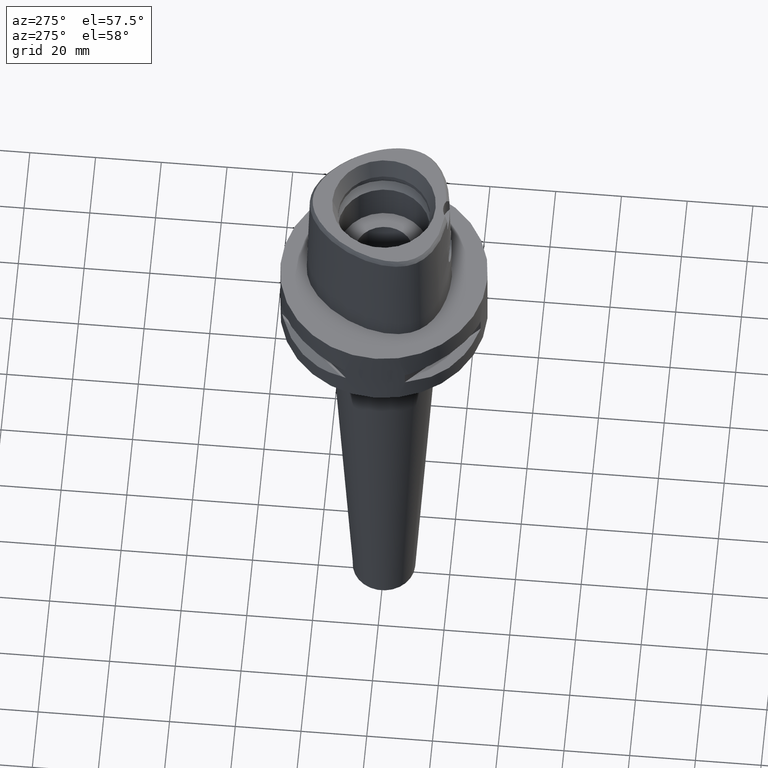
[diagram: clean part render]
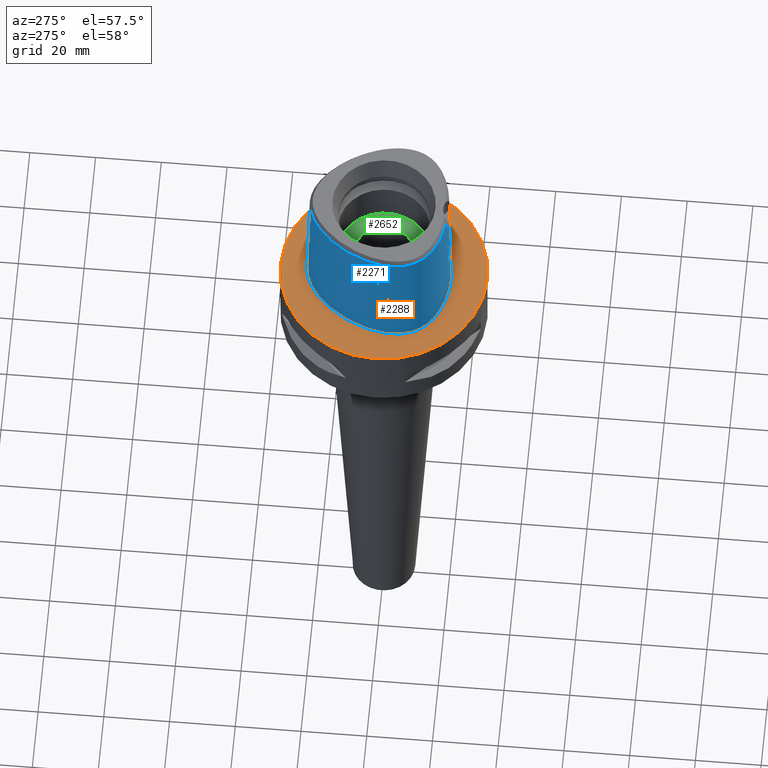
[diagram: same view with three faces highlighted in distinct colors, each labeled with its STEP entity id]
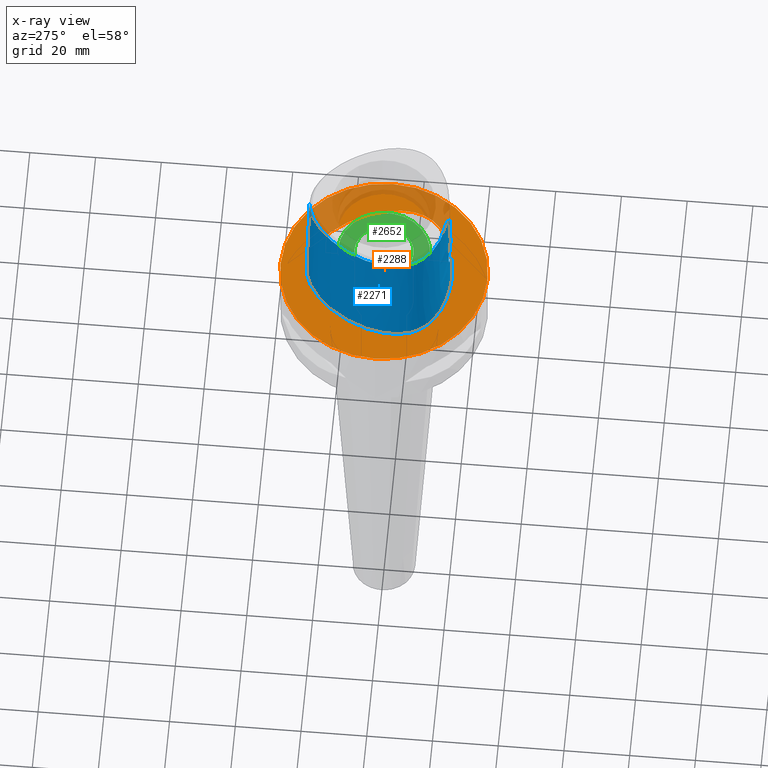
[diagram: x-ray of the same camera — body ghosted, the three highlighted faces saturated]
A machine part, auxiliary view with three faces highlighted in distinct colors.
The next image is the same camera in x-ray (body ghosted, the three faces saturated) — at least one of them is partly hidden behind the body in this view.
Their STEP definitions:

[orange] entity #2288 — the highlighted planar face has unit normal (0, 0, -1).
#275=CARTESIAN_POINT('',(0.E0,1.325680160077E-14,0.E0));
#276=DIRECTION('',(0.E0,0.E0,-1.E0));
#277=DIRECTION('',(0.E0,-1.E0,0.E0));
#278=AXIS2_PLACEMENT_3D('',#275,#276,#277);
#283=CARTESIAN_POINT('',(0.E0,1.325680160077E-14,0.E0));
#284=DIRECTION('',(0.E0,0.E0,-1.E0));
#285=DIRECTION('',(0.E0,1.E0,0.E0));
#286=AXIS2_PLACEMENT_3D('',#283,#284,#285);
#291=CARTESIAN_POINT('',(-5.544119263659E-12,-2.0675E1,7.264559324464E-14));
#292=CARTESIAN_POINT('',(9.993560509798E-1,-2.0675E1,7.264559324464E-14));
#293=CARTESIAN_POINT('',(2.955454059953E0,-2.059182991098E1,
-3.371493715748E-14));
#294=CARTESIAN_POINT('',(5.793056832365E0,-2.023445547095E1,0.E0));
#295=CARTESIAN_POINT('',(8.440299845029E0,-1.966898990197E1,0.E0));
#296=CARTESIAN_POINT('',(1.082569887884E1,-1.893751788510E1,0.E0));
#297=CARTESIAN_POINT('',(1.292144293780E1,-1.808304144246E1,0.E0));
#298=CARTESIAN_POINT('',(1.473190987268E1,-1.714161088191E1,0.E0));
#299=CARTESIAN_POINT('',(1.628058086811E1,-1.613700341594E1,0.E0));
#300=CARTESIAN_POINT('',(1.758462319708E1,-1.509429163050E1,0.E0));
#301=CARTESIAN_POINT('',(1.868311493360E1,-1.401452497844E1,0.E0));
#302=CARTESIAN_POINT('',(1.959652438140E1,-1.290475345799E1,0.E0));
#303=CARTESIAN_POINT('',(2.036064678625E1,-1.173722907498E1,0.E0));
#304=CARTESIAN_POINT('',(2.098286737742E1,-1.049796407517E1,0.E0));
#305=CARTESIAN_POINT('',(2.148460262653E1,-9.152658909070E0,0.E0));
#306=CARTESIAN_POINT('',(2.186688955230E1,-7.668741930685E0,0.E0));
#307=CARTESIAN_POINT('',(2.211748022392E1,-6.011344606950E0,0.E0));
#308=CARTESIAN_POINT('',(2.221114513228E1,-4.165101131633E0,0.E0));
#309=CARTESIAN_POINT('',(2.211859909826E1,-2.119791264277E0,0.E0));
#310=CARTESIAN_POINT('',(2.180697303124E1,1.274638893074E-1,0.E0));
#311=CARTESIAN_POINT('',(2.124390727169E1,2.561688994165E0,0.E0));
#312=CARTESIAN_POINT('',(2.040432990039E1,5.142967568815E0,0.E0));
#313=CARTESIAN_POINT('',(1.928615762684E1,7.790527726071E0,0.E0));
#314=CARTESIAN_POINT('',(1.790818983488E1,1.041471447125E1,0.E0));
#315=CARTESIAN_POINT('',(1.631740085403E1,1.291115934797E1,0.E0));
#316=CARTESIAN_POINT('',(1.457981575214E1,1.519116277501E1,0.E0));
#317=CARTESIAN_POINT('',(1.276360468057E1,1.719471030503E1,0.E0));
#318=CARTESIAN_POINT('',(1.094031032691E1,1.888405274651E1,0.E0));
#319=CARTESIAN_POINT('',(9.153147211204E0,2.026455207171E1,0.E0));
#320=CARTESIAN_POINT('',(7.435015692265E0,2.135402119261E1,0.E0));
#321=CARTESIAN_POINT('',(5.795953209951E0,2.218530691809E1,0.E0));
#322=CARTESIAN_POINT('',(4.238113018428E0,2.278980944085E1,0.E0));
#323=CARTESIAN_POINT('',(2.755912777145E0,2.319591735050E1,0.E0));
#324=CARTESIAN_POINT('',(1.346169757095E0,2.342625517229E1,
-3.235809557040E-14));
#325=CARTESIAN_POINT('',(4.420725725818E-1,2.347499999999E1,
6.972200594646E-14));
#326=CARTESIAN_POINT('',(3.799139197506E-11,2.347499999999E1,
6.972200594646E-14));
#331=CARTESIAN_POINT('',(3.799139197506E-11,2.347499999999E1,
6.972200594646E-14));
#332=CARTESIAN_POINT('',(-4.425820475878E-1,2.347499999999E1,
6.972200594646E-14));
#333=CARTESIAN_POINT('',(-1.347662200040E0,2.342614583775E1,
-3.235809557040E-14));
#334=CARTESIAN_POINT('',(-2.758853381342E0,2.319531897184E1,0.E0));
#335=CARTESIAN_POINT('',(-4.242230104549E0,2.278848861890E1,0.E0));
#336=CARTESIAN_POINT('',(-5.801612667635E0,2.218285001682E1,0.E0));
#337=CARTESIAN_POINT('',(-7.442978404358E0,2.134957065587E1,0.E0));
#338=CARTESIAN_POINT('',(-9.163227561140E0,2.025756793929E1,0.E0));
#339=CARTESIAN_POINT('',(-1.095272870368E1,1.887364628884E1,0.E0));
#340=CARTESIAN_POINT('',(-1.277801152707E1,1.718022281640E1,0.E0));
#341=CARTESIAN_POINT('',(-1.459495771783E1,1.517303412729E1,0.E0));
#342=CARTESIAN_POINT('',(-1.633282642389E1,1.288911490603E1,0.E0));
#343=CARTESIAN_POINT('',(-1.792246770589E1,1.039015374661E1,0.E0));
#344=CARTESIAN_POINT('',(-1.929884579616E1,7.763682889804E0,0.E0));
#345=CARTESIAN_POINT('',(-2.041405626851E1,5.116842502056E0,0.E0));
#346=CARTESIAN_POINT('',(-2.125087139496E1,2.536440296266E0,0.E0));
#347=CARTESIAN_POINT('',(-2.181091904993E1,1.058134259895E-1,0.E0));
#348=CARTESIAN_POINT('',(-2.212049288494E1,-2.140142262062E0,0.E0));
#349=CARTESIAN_POINT('',(-2.221099399982E1,-4.183391986546E0,0.E0));
#350=CARTESIAN_POINT('',(-2.211611235615E1,-6.025168758480E0,0.E0));
#351=CARTESIAN_POINT('',(-2.186347175870E1,-7.686763478002E0,0.E0));
#352=CARTESIAN_POINT('',(-2.147797938097E1,-9.173911519513E0,0.E0));
#353=CARTESIAN_POINT('',(-2.097460780692E1,-1.051678122246E1,0.E0));
#354=CARTESIAN_POINT('',(-2.035325712307E1,-1.174865156376E1,0.E0));
#355=CARTESIAN_POINT('',(-1.960223723573E1,-1.289594780434E1,0.E0));
#356=CARTESIAN_POINT('',(-1.869579824321E1,-1.400010665431E1,0.E0));
#357=CARTESIAN_POINT('',(-1.760876310015E1,-1.507291202278E1,0.E0));
#358=CARTESIAN_POINT('',(-1.629860914140E1,-1.612432705675E1,0.E0));
#359=CARTESIAN_POINT('',(-1.475326852250E1,-1.712914698935E1,0.E0));
#360=CARTESIAN_POINT('',(-1.294126791582E1,-1.807406224244E1,0.E0));
#361=CARTESIAN_POINT('',(-1.084450933749E1,-1.893089849681E1,0.E0));
#362=CARTESIAN_POINT('',(-8.457239462537E0,-1.966475618658E1,0.E0));
#363=CARTESIAN_POINT('',(-5.803786146490E0,-2.023290404964E1,0.E0));
#364=CARTESIAN_POINT('',(-2.957577428885E0,-2.059182769325E1,
-3.371493715748E-14));
#365=CARTESIAN_POINT('',(-9.997112379900E-1,-2.0675E1,7.264559324464E-14));
#366=CARTESIAN_POINT('',(-5.544119263659E-12,-2.0675E1,7.264559324464E-14));
#1452=VERTEX_POINT('',#331);
#1453=VERTEX_POINT('',#366);
#1458=CARTESIAN_POINT('',(0.E0,-3.15E1,0.E0));
#1459=CARTESIAN_POINT('',(0.E0,3.15E1,0.E0));
#1460=VERTEX_POINT('',#1458);
#1461=VERTEX_POINT('',#1459);
#2272=CARTESIAN_POINT('',(0.E0,1.224646799147E-14,0.E0));
#2273=DIRECTION('',(0.E0,0.E0,-1.E0));
#2274=DIRECTION('',(0.E0,-1.E0,0.E0));
#2275=AXIS2_PLACEMENT_3D('',#2272,#2273,#2274);
#2276=PLANE('',#2275);
#2278=ORIENTED_EDGE('',*,*,#2277,.T.);
#2280=ORIENTED_EDGE('',*,*,#2279,.T.);
#2281=EDGE_LOOP('',(#2278,#2280));
#2282=FACE_OUTER_BOUND('',#2281,.F.);
#2284=ORIENTED_EDGE('',*,*,#2283,.T.);
#2285=ORIENTED_EDGE('',*,*,#2255,.T.);
#2286=EDGE_LOOP('',(#2284,#2285));
#2287=FACE_BOUND('',#2286,.F.);
#279=CIRCLE('',#278,3.15E1);
#287=CIRCLE('',#286,3.15E1);
#327=B_SPLINE_CURVE_WITH_KNOTS('',3,(#291,#292,#293,#294,#295,#296,#297,#298,
#299,#300,#301,#302,#303,#304,#305,#306,#307,#308,#309,#310,#311,#312,#313,#314,
#315,#316,#317,#318,#319,#320,#321,#322,#323,#324,#325,#326),.UNSPECIFIED.,.F.,
.F.,(4,1,1,1,1,1,1,1,1,1,1,1,1,1,1,1,1,1,1,1,1,1,1,1,1,1,1,1,1,1,1,1,1,4),(0.E0,
3.030303030303E-2,6.060606060606E-2,9.090909090909E-2,1.212121212121E-1,
1.515151515152E-1,1.818181818182E-1,2.121212121212E-1,2.424242424242E-1,
2.727272727273E-1,3.030303030303E-1,3.333333333333E-1,3.636363636364E-1,
3.939393939394E-1,4.242424242424E-1,4.545454545455E-1,4.848484848485E-1,
5.151515151515E-1,5.454545454545E-1,5.757575757576E-1,6.060606060606E-1,
6.363636363636E-1,6.666666666667E-1,6.969696969697E-1,7.272727272727E-1,
7.575757575758E-1,7.878787878788E-1,8.181818181818E-1,8.484848484848E-1,
8.787878787879E-1,9.090909090909E-1,9.393939393939E-1,9.696969696970E-1,1.E0),
.UNSPECIFIED.);
#367=B_SPLINE_CURVE_WITH_KNOTS('',3,(#331,#332,#333,#334,#335,#336,#337,#338,
#339,#340,#341,#342,#343,#344,#345,#346,#347,#348,#349,#350,#351,#352,#353,#354,
#355,#356,#357,#358,#359,#360,#361,#362,#363,#364,#365,#366),.UNSPECIFIED.,.F.,
.F.,(4,1,1,1,1,1,1,1,1,1,1,1,1,1,1,1,1,1,1,1,1,1,1,1,1,1,1,1,1,1,1,1,1,4),(0.E0,
3.030303030303E-2,6.060606060606E-2,9.090909090909E-2,1.212121212121E-1,
1.515151515152E-1,1.818181818182E-1,2.121212121212E-1,2.424242424242E-1,
2.727272727273E-1,3.030303030303E-1,3.333333333333E-1,3.636363636364E-1,
3.939393939394E-1,4.242424242424E-1,4.545454545455E-1,4.848484848485E-1,
5.151515151515E-1,5.454545454545E-1,5.757575757576E-1,6.060606060606E-1,
6.363636363636E-1,6.666666666667E-1,6.969696969697E-1,7.272727272727E-1,
7.575757575758E-1,7.878787878788E-1,8.181818181818E-1,8.484848484848E-1,
8.787878787879E-1,9.090909090909E-1,9.393939393939E-1,9.696969696970E-1,1.E0),
.UNSPECIFIED.);
#2255=EDGE_CURVE('',#1452,#1453,#367,.T.);
#2277=EDGE_CURVE('',#1460,#1461,#279,.T.);
#2279=EDGE_CURVE('',#1461,#1460,#287,.T.);
#2283=EDGE_CURVE('',#1453,#1452,#327,.T.);
#2288=ADVANCED_FACE('',(#2282,#2287),#2276,.F.);

[blue] entity #2271 — the highlighted face is a freeform B-spline surface patch.
#187=CARTESIAN_POINT('',(-3.637738201364E0,-1.956971413237E1,3.652186244848E1));
#188=CARTESIAN_POINT('',(-4.570498834920E0,-1.947033169250E1,3.652183429411E1));
#189=CARTESIAN_POINT('',(-6.377330865899E0,-1.919903219246E1,3.652188365854E1));
#190=CARTESIAN_POINT('',(-8.862283789615E0,-1.860473695942E1,3.652185715624E1));
#191=CARTESIAN_POINT('',(-1.101095774850E1,-1.789192137924E1,3.652187916545E1));
#192=CARTESIAN_POINT('',(-1.290971152574E1,-1.707601958697E1,3.652186219287E1));
#193=CARTESIAN_POINT('',(-1.459604956547E1,-1.615843595702E1,3.652186776422E1));
#194=CARTESIAN_POINT('',(-1.601670618861E1,-1.519532249249E1,3.652187141473E1));
#195=CARTESIAN_POINT('',(-1.720864825947E1,-1.420090018330E1,3.652186610112E1));
#196=CARTESIAN_POINT('',(-1.819806594156E1,-1.318491913606E1,3.652187335549E1));
#197=CARTESIAN_POINT('',(-1.901192967083E1,-1.214960303041E1,3.652185126838E1));
#198=CARTESIAN_POINT('',(-1.967417042406E1,-1.108845287414E1,3.652188632424E1));
#199=CARTESIAN_POINT('',(-2.022141608441E1,-9.950205040780E0,3.652185473754E1));
#200=CARTESIAN_POINT('',(-2.067406748826E1,-8.676527453026E0,3.652187057781E1));
#201=CARTESIAN_POINT('',(-2.101664589221E1,-7.252563444901E0,3.652186533681E1));
#202=CARTESIAN_POINT('',(-2.123188724194E1,-5.657545682418E0,3.652186829374E1));
#203=CARTESIAN_POINT('',(-2.129578657750E1,-3.868157455426E0,3.652186918457E1));
#204=CARTESIAN_POINT('',(-2.117478920409E1,-1.883691922418E0,3.652186242867E1));
#205=CARTESIAN_POINT('',(-2.085886817495E1,2.041426648528E-1,3.652187610025E1));
#206=CARTESIAN_POINT('',(-2.030551426829E1,2.519737644745E0,3.652185833072E1));
#207=CARTESIAN_POINT('',(-1.946604099902E1,5.041063010591E0,3.652186565877E1));
#208=CARTESIAN_POINT('',(-1.835906581909E1,7.610098803892E0,3.652186827279E1));
#209=CARTESIAN_POINT('',(-1.700322564873E1,1.015130844472E1,3.652186358237E1));
#210=CARTESIAN_POINT('',(-1.544540485188E1,1.256164691713E1,3.652184335312E1));
#211=CARTESIAN_POINT('',(-1.375011112697E1,1.475876845260E1,3.652185741966E1));
#212=CARTESIAN_POINT('',(-1.198232348012E1,1.668199068718E1,3.652187258999E1));
#213=CARTESIAN_POINT('',(-1.027839807305E1,1.824242551061E1,3.652186465819E1));
#214=CARTESIAN_POINT('',(-8.622310891054E0,1.951845097549E1,3.652186877210E1));
#215=CARTESIAN_POINT('',(-6.986842082689E0,2.055724369187E1,3.652186966584E1));
#216=CARTESIAN_POINT('',(-5.420753866552E0,2.135142997188E1,3.652186549400E1));
#217=CARTESIAN_POINT('',(-3.950792338548E0,2.192136299070E1,3.652186919896E1));
#218=CARTESIAN_POINT('',(-2.561076990759E0,2.230242873160E1,3.652187275022E1));
#219=CARTESIAN_POINT('',(-1.243295270645E0,2.251701141897E1,3.652180761318E1));
#220=CARTESIAN_POINT('',(-4.150647672461E-1,2.256201468012E1,3.652186680743E1));
#221=CARTESIAN_POINT('',(-1.812906228111E-11,2.256201468012E1,
3.652186680744E1));
#233=CARTESIAN_POINT('',(-3.637738201364E0,-1.956971413237E1,3.652186244848E1));
#234=CARTESIAN_POINT('',(-3.649042726833E0,-1.958170231834E1,3.599710491520E1));
#235=CARTESIAN_POINT('',(-3.671106183707E0,-1.960533297179E1,3.494764182412E1));
#236=CARTESIAN_POINT('',(-3.704089539557E0,-1.964135162194E1,3.337369009748E1));
#237=CARTESIAN_POINT('',(-3.726005756395E0,-1.966575923510E1,3.232454432382E1));
#238=CARTESIAN_POINT('',(-3.736696126116E0,-1.967778323257E1,3.18E1));
#243=DIRECTION('',(-1.665636293796E-9,-2.499140646182E-2,-9.996876660253E-1));
#244=VECTOR('',#243,1.225382733632E1);
#245=CARTESIAN_POINT('',(2.041042029991E-8,-1.988004246002E1,3.180000004972E1));
#246=LINE('',#245,#244);
#250=CARTESIAN_POINT('',(0.E0,-2.018628283969E1,1.955E1));
#251=CARTESIAN_POINT('',(-3.856895391280E-1,-2.018628283969E1,1.955E1));
#252=CARTESIAN_POINT('',(-1.156990957255E0,-2.017597984157E1,1.943895893816E1));
#253=CARTESIAN_POINT('',(-2.218974166701E0,-2.013552730906E1,1.895406583031E1));
#254=CARTESIAN_POINT('',(-3.103837936943E0,-2.008533807411E1,1.818778244968E1));
#255=CARTESIAN_POINT('',(-3.736879261136E0,-2.004595787825E1,1.720042665982E1));
#256=CARTESIAN_POINT('',(-4.064001073615E0,-2.003617272084E1,1.608031858327E1));
#257=CARTESIAN_POINT('',(-4.063020619392E0,-2.006566388540E1,1.491391748472E1));
#258=CARTESIAN_POINT('',(-3.735326478736E0,-2.013171838185E1,1.379707110157E1));
#259=CARTESIAN_POINT('',(-3.103904819207E0,-2.022026156512E1,1.281235779050E1));
#260=CARTESIAN_POINT('',(-2.217371925353E0,-2.030873033323E1,1.204454096443E1));
#261=CARTESIAN_POINT('',(-1.153256243952E0,-2.037314278516E1,1.156000177627E1));
#262=CARTESIAN_POINT('',(-3.840360556272E-1,-2.038876923348E1,1.145E1));
#263=CARTESIAN_POINT('',(-6.936546298697E-13,-2.038876923348E1,1.145E1));
#268=DIRECTION('',(-4.234890635139E-13,-2.499051295390E-2,-9.996876883619E-1));
#269=VECTOR('',#268,1.145357708542E1);
#270=CARTESIAN_POINT('',(-6.936546298697E-13,-2.038876923348E1,1.145E1));
#271=LINE('',#270,#269);
#331=CARTESIAN_POINT('',(3.799139197506E-11,2.347499999999E1,
6.972200594646E-14));
#332=CARTESIAN_POINT('',(-4.425820475878E-1,2.347499999999E1,
6.972200594646E-14));
#333=CARTESIAN_POINT('',(-1.347662200040E0,2.342614583775E1,
-3.235809557040E-14));
#334=CARTESIAN_POINT('',(-2.758853381342E0,2.319531897184E1,0.E0));
#335=CARTESIAN_POINT('',(-4.242230104549E0,2.278848861890E1,0.E0));
#336=CARTESIAN_POINT('',(-5.801612667635E0,2.218285001682E1,0.E0));
#337=CARTESIAN_POINT('',(-7.442978404358E0,2.134957065587E1,0.E0));
#338=CARTESIAN_POINT('',(-9.163227561140E0,2.025756793929E1,0.E0));
#339=CARTESIAN_POINT('',(-1.095272870368E1,1.887364628884E1,0.E0));
#340=CARTESIAN_POINT('',(-1.277801152707E1,1.718022281640E1,0.E0));
#341=CARTESIAN_POINT('',(-1.459495771783E1,1.517303412729E1,0.E0));
#342=CARTESIAN_POINT('',(-1.633282642389E1,1.288911490603E1,0.E0));
#343=CARTESIAN_POINT('',(-1.792246770589E1,1.039015374661E1,0.E0));
#344=CARTESIAN_POINT('',(-1.929884579616E1,7.763682889804E0,0.E0));
#345=CARTESIAN_POINT('',(-2.041405626851E1,5.116842502056E0,0.E0));
#346=CARTESIAN_POINT('',(-2.125087139496E1,2.536440296266E0,0.E0));
#347=CARTESIAN_POINT('',(-2.181091904993E1,1.058134259895E-1,0.E0));
#348=CARTESIAN_POINT('',(-2.212049288494E1,-2.140142262062E0,0.E0));
#349=CARTESIAN_POINT('',(-2.221099399982E1,-4.183391986546E0,0.E0));
#350=CARTESIAN_POINT('',(-2.211611235615E1,-6.025168758480E0,0.E0));
#351=CARTESIAN_POINT('',(-2.186347175870E1,-7.686763478002E0,0.E0));
#352=CARTESIAN_POINT('',(-2.147797938097E1,-9.173911519513E0,0.E0));
#353=CARTESIAN_POINT('',(-2.097460780692E1,-1.051678122246E1,0.E0));
#354=CARTESIAN_POINT('',(-2.035325712307E1,-1.174865156376E1,0.E0));
#355=CARTESIAN_POINT('',(-1.960223723573E1,-1.289594780434E1,0.E0));
#356=CARTESIAN_POINT('',(-1.869579824321E1,-1.400010665431E1,0.E0));
#357=CARTESIAN_POINT('',(-1.760876310015E1,-1.507291202278E1,0.E0));
#358=CARTESIAN_POINT('',(-1.629860914140E1,-1.612432705675E1,0.E0));
#359=CARTESIAN_POINT('',(-1.475326852250E1,-1.712914698935E1,0.E0));
#360=CARTESIAN_POINT('',(-1.294126791582E1,-1.807406224244E1,0.E0));
#361=CARTESIAN_POINT('',(-1.084450933749E1,-1.893089849681E1,0.E0));
#362=CARTESIAN_POINT('',(-8.457239462537E0,-1.966475618658E1,0.E0));
#363=CARTESIAN_POINT('',(-5.803786146490E0,-2.023290404964E1,0.E0));
#364=CARTESIAN_POINT('',(-2.957577428885E0,-2.059182769325E1,
-3.371493715748E-14));
#365=CARTESIAN_POINT('',(-9.997112379900E-1,-2.0675E1,7.264559324464E-14));
#366=CARTESIAN_POINT('',(-5.544119263659E-12,-2.0675E1,7.264559324464E-14));
#937=DIRECTION('',(1.536146207450E-12,2.499051290972E-2,-9.996876883630E-1));
#938=VECTOR('',#937,3.653327657485E1);
#939=CARTESIAN_POINT('',(-1.812906228111E-11,2.256201468012E1,
3.652186680744E1));
#940=LINE('',#939,#938);
#954=CARTESIAN_POINT('',(2.041042029991E-8,-1.988004246002E1,3.180000004972E1));
#955=CARTESIAN_POINT('',(-4.161790280178E-1,-1.988004245993E1,
3.180000004972E1));
#956=CARTESIAN_POINT('',(-1.247889105566E0,-1.986528007158E1,3.179999997680E1));
#957=CARTESIAN_POINT('',(-2.494485023973E0,-1.979770229313E1,3.180000000663E1));
#958=CARTESIAN_POINT('',(-3.322953884429E0,-1.972294683092E1,3.18E1));
#959=CARTESIAN_POINT('',(-3.736696126116E0,-1.967778323257E1,3.18E1));
#1447=CARTESIAN_POINT('',(-3.736722311399E0,-1.967781602444E1,3.18E1));
#1448=VERTEX_POINT('',#1447);
#1449=VERTEX_POINT('',#233);
#1450=CARTESIAN_POINT('',(-1.812906228111E-11,2.256201468012E1,
3.652186680744E1));
#1451=VERTEX_POINT('',#1450);
#1452=VERTEX_POINT('',#331);
#1453=VERTEX_POINT('',#366);
#1454=VERTEX_POINT('',#954);
#1455=CARTESIAN_POINT('',(0.E0,-2.018628283969E1,1.955E1));
#1456=VERTEX_POINT('',#1455);
#1457=VERTEX_POINT('',#263);
#2154=CARTESIAN_POINT('',(7.234356449526E-1,2.347140592420E1,
-7.304375799516E-1));
#2155=CARTESIAN_POINT('',(7.042335302723E-1,2.315549824666E1,1.193048047254E1));
#2156=CARTESIAN_POINT('',(6.850314155920E-1,2.283959056912E1,2.459139852504E1));
#2157=CARTESIAN_POINT('',(6.658293009116E-1,2.252368289158E1,3.725231657753E1));
#2158=CARTESIAN_POINT('',(4.823619556323E-1,2.348603817965E1,
-7.304375799516E-1));
#2159=CARTESIAN_POINT('',(4.696382063786E-1,2.316972809702E1,1.193048047254E1));
#2160=CARTESIAN_POINT('',(4.569144571249E-1,2.285341801439E1,2.459139852504E1));
#2161=CARTESIAN_POINT('',(4.441907078712E-1,2.253710793175E1,3.725231657753E1));
#2162=CARTESIAN_POINT('',(-6.149727125722E-1,2.351889464679E1,
-7.304375799516E-1));
#2163=CARTESIAN_POINT('',(-5.985508206624E-1,2.320171281901E1,
1.193048047254E1));
#2164=CARTESIAN_POINT('',(-5.821289287526E-1,2.288453099123E1,
2.459139852504E1));
#2165=CARTESIAN_POINT('',(-5.657070368428E-1,2.256734916345E1,
3.725231657753E1));
#2166=CARTESIAN_POINT('',(-2.568271205267E0,2.331126238145E1,
-7.304375799516E-1));
#2167=CARTESIAN_POINT('',(-2.503210914562E0,2.299958943627E1,1.193048047254E1));
#2168=CARTESIAN_POINT('',(-2.438150623856E0,2.268791649109E1,2.459139852504E1));
#2169=CARTESIAN_POINT('',(-2.373090333151E0,2.237624354590E1,3.725231657753E1));
#2170=CARTESIAN_POINT('',(-5.105252915174E0,2.254305024007E1,
-7.304375799516E-1));
#2171=CARTESIAN_POINT('',(-4.987110685064E0,2.224795284968E1,1.193048047254E1));
#2172=CARTESIAN_POINT('',(-4.868968454954E0,2.195285545930E1,2.459139852504E1));
#2173=CARTESIAN_POINT('',(-4.750826224844E0,2.165775806891E1,3.725231657753E1));
#2174=CARTESIAN_POINT('',(-7.580410838895E0,2.133037926075E1,
-7.304375799516E-1));
#2175=CARTESIAN_POINT('',(-7.420053160143E0,2.105635749112E1,1.193048047254E1));
#2176=CARTESIAN_POINT('',(-7.259695481390E0,2.078233572149E1,2.459139852504E1));
#2177=CARTESIAN_POINT('',(-7.099337802638E0,2.050831395186E1,3.725231657753E1));
#2178=CARTESIAN_POINT('',(-1.075753573654E1,1.918839675560E1,
-7.304375799516E-1));
#2179=CARTESIAN_POINT('',(-1.055288408672E1,1.894467590849E1,1.193048047254E1));
#2180=CARTESIAN_POINT('',(-1.034823243690E1,1.870095506138E1,2.459139852504E1));
#2181=CARTESIAN_POINT('',(-1.014358078708E1,1.845723421427E1,3.725231657753E1));
#2182=CARTESIAN_POINT('',(-1.442198651811E1,1.565278600091E1,
-7.304375799516E-1));
#2183=CARTESIAN_POINT('',(-1.417879762364E1,1.544741198515E1,1.193048047254E1));
#2184=CARTESIAN_POINT('',(-1.393560872918E1,1.524203796940E1,2.459139852504E1));
#2185=CARTESIAN_POINT('',(-1.369241983471E1,1.503666395365E1,3.725231657753E1));
#2186=CARTESIAN_POINT('',(-1.808416038101E1,1.044089487088E1,
-7.304375799516E-1));
#2187=CARTESIAN_POINT('',(-1.780867312151E1,1.028184210896E1,1.193048047254E1));
#2188=CARTESIAN_POINT('',(-1.753318586201E1,1.012278934704E1,2.459139852504E1));
#2189=CARTESIAN_POINT('',(-1.725769860250E1,9.963736585120E0,3.725231657753E1));
#2190=CARTESIAN_POINT('',(-2.076670354678E1,4.663413653145E0,
-7.304375799516E-1));
#2191=CARTESIAN_POINT('',(-2.046725048838E1,4.555493665292E0,1.193048047254E1));
#2192=CARTESIAN_POINT('',(-2.016779742998E1,4.447573677438E0,2.459139852504E1));
#2193=CARTESIAN_POINT('',(-1.986834437158E1,4.339653689584E0,3.725231657753E1));
#2194=CARTESIAN_POINT('',(-2.199640701348E1,-2.778990166620E-1,
-7.304375799516E-1));
#2195=CARTESIAN_POINT('',(-2.168301106281E1,-3.332743945209E-1,
1.193048047254E1));
#2196=CARTESIAN_POINT('',(-2.136961511214E1,-3.886497723797E-1,
2.459139852504E1));
#2197=CARTESIAN_POINT('',(-2.105621916147E1,-4.440251502385E-1,
3.725231657753E1));
#2198=CARTESIAN_POINT('',(-2.226285556288E1,-4.100361500063E0,
-7.304375799516E-1));
#2199=CARTESIAN_POINT('',(-2.194536983438E1,-4.102220498962E0,
1.193048047254E1));
#2200=CARTESIAN_POINT('',(-2.162788410588E1,-4.104079497861E0,
2.459139852504E1));
#2201=CARTESIAN_POINT('',(-2.131039837738E1,-4.105938496760E0,
3.725231657753E1));
#2202=CARTESIAN_POINT('',(-2.207548128864E1,-6.850245535129E0,
-7.304375799516E-1));
#2203=CARTESIAN_POINT('',(-2.176083716808E1,-6.805026051220E0,
1.193048047254E1));
#2204=CARTESIAN_POINT('',(-2.144619304751E1,-6.759806567311E0,
2.459139852504E1));
#2205=CARTESIAN_POINT('',(-2.113154892695E1,-6.714587083402E0,
3.725231657753E1));
#2206=CARTESIAN_POINT('',(-2.157281239023E1,-9.001246194474E0,
-7.304375799516E-1));
#2207=CARTESIAN_POINT('',(-2.126836746785E1,-8.910752261088E0,
1.193048047254E1));
#2208=CARTESIAN_POINT('',(-2.096392254546E1,-8.820258327702E0,
2.459139852504E1));
#2209=CARTESIAN_POINT('',(-2.065947762308E1,-8.729764394315E0,
3.725231657753E1));
#2210=CARTESIAN_POINT('',(-2.094844325638E1,-1.061175396898E1,
-7.304375799516E-1));
#2211=CARTESIAN_POINT('',(-2.065879052910E1,-1.048283621514E1,
1.193048047254E1));
#2212=CARTESIAN_POINT('',(-2.036913780182E1,-1.035391846129E1,
2.459139852504E1));
#2213=CARTESIAN_POINT('',(-2.007948507454E1,-1.022500070745E1,
3.725231657753E1));
#2214=CARTESIAN_POINT('',(-2.036546124297E1,-1.175800453083E1,
-7.304375799516E-1));
#2215=CARTESIAN_POINT('',(-2.009084478138E1,-1.159945464221E1,
1.193048047254E1));
#2216=CARTESIAN_POINT('',(-1.981622831980E1,-1.144090475359E1,
2.459139852504E1));
#2217=CARTESIAN_POINT('',(-1.954161185821E1,-1.128235486496E1,
3.725231657753E1));
#2218=CARTESIAN_POINT('',(-1.966427014425E1,-1.283600704526E1,
-7.304375799516E-1));
#2219=CARTESIAN_POINT('',(-1.940779772701E1,-1.264961930231E1,
1.193048047254E1));
#2220=CARTESIAN_POINT('',(-1.915132530977E1,-1.246323155936E1,
2.459139852504E1));
#2221=CARTESIAN_POINT('',(-1.889485289254E1,-1.227684381640E1,
3.725231657753E1));
#2222=CARTESIAN_POINT('',(-1.858171406406E1,-1.418198046379E1,
-7.304375799516E-1));
#2223=CARTESIAN_POINT('',(-1.835112157835E1,-1.396357039356E1,
1.193048047254E1));
#2224=CARTESIAN_POINT('',(-1.812052909263E1,-1.374516032333E1,
2.459139852504E1));
#2225=CARTESIAN_POINT('',(-1.788993660692E1,-1.352675025309E1,
3.725231657753E1));
#2226=CARTESIAN_POINT('',(-1.697022730955E1,-1.569280482918E1,
-7.304375799516E-1));
#2227=CARTESIAN_POINT('',(-1.677374386019E1,-1.544292476921E1,
1.193048047254E1));
#2228=CARTESIAN_POINT('',(-1.657726041084E1,-1.519304470924E1,
2.459139852504E1));
#2229=CARTESIAN_POINT('',(-1.638077696148E1,-1.494316464927E1,
3.725231657753E1));
#2230=CARTESIAN_POINT('',(-1.468244496996E1,-1.723001772813E1,
-7.304375799516E-1));
#2231=CARTESIAN_POINT('',(-1.452531265678E1,-1.695413752396E1,
1.193048047254E1));
#2232=CARTESIAN_POINT('',(-1.436818034359E1,-1.667825731980E1,
2.459139852504E1));
#2233=CARTESIAN_POINT('',(-1.421104803041E1,-1.640237711564E1,
3.725231657753E1));
#2234=CARTESIAN_POINT('',(-1.123887130167E1,-1.891049775780E1,
-7.304375799516E-1));
#2235=CARTESIAN_POINT('',(-1.113012657215E1,-1.861140120609E1,
1.193048047254E1));
#2236=CARTESIAN_POINT('',(-1.102138184263E1,-1.831230465437E1,
2.459139852504E1));
#2237=CARTESIAN_POINT('',(-1.091263711311E1,-1.801320810266E1,
3.725231657753E1));
#2238=CARTESIAN_POINT('',(-6.344715576254E0,-2.031619964720E1,
-7.304375799516E-1));
#2239=CARTESIAN_POINT('',(-6.288476587518E0,-2.000290576241E1,
1.193048047254E1));
#2240=CARTESIAN_POINT('',(-6.232237598782E0,-1.968961187761E1,
2.459139852504E1));
#2241=CARTESIAN_POINT('',(-6.175998610046E0,-1.937631799282E1,
3.725231657753E1));
#2242=CARTESIAN_POINT('',(-1.886862292099E0,-2.071358859663E1,
-7.304375799516E-1));
#2243=CARTESIAN_POINT('',(-1.870070494248E0,-2.039691396701E1,
1.193048047254E1));
#2244=CARTESIAN_POINT('',(-1.853278696397E0,-2.008023933740E1,
2.459139852504E1));
#2245=CARTESIAN_POINT('',(-1.836486898546E0,-1.976356470779E1,
3.725231657753E1));
#2246=CARTESIAN_POINT('',(4.560943669786E-1,-2.069106768230E1,
-7.304375799516E-1));
#2247=CARTESIAN_POINT('',(4.520368087173E-1,-2.037458464701E1,
1.193048047254E1));
#2248=CARTESIAN_POINT('',(4.479792504560E-1,-2.005810161172E1,
2.459139852504E1));
#2249=CARTESIAN_POINT('',(4.439216921947E-1,-1.974161857643E1,
3.725231657753E1));
#2250=CARTESIAN_POINT('',(6.840430853086E-1,-2.068668154738E1,
-7.304375799516E-1));
#2251=CARTESIAN_POINT('',(6.779535350909E-1,-2.037023526539E1,
1.193048047254E1));
#2252=CARTESIAN_POINT('',(6.718639848733E-1,-2.005378898340E1,
2.459139852504E1));
#2253=CARTESIAN_POINT('',(6.657744346556E-1,-1.973734270141E1,
3.725231657753E1));
#2254=B_SPLINE_SURFACE_WITH_KNOTS('',3,3,((#2154,#2155,#2156,#2157),(#2158,
#2159,#2160,#2161),(#2162,#2163,#2164,#2165),(#2166,#2167,#2168,#2169),(#2170,
#2171,#2172,#2173),(#2174,#2175,#2176,#2177),(#2178,#2179,#2180,#2181),(#2182,
#2183,#2184,#2185),(#2186,#2187,#2188,#2189),(#2190,#2191,#2192,#2193),(#2194,
#2195,#2196,#2197),(#2198,#2199,#2200,#2201),(#2202,#2203,#2204,#2205),(#2206,
#2207,#2208,#2209),(#2210,#2211,#2212,#2213),(#2214,#2215,#2216,#2217),(#2218,
#2219,#2220,#2221),(#2222,#2223,#2224,#2225),(#2226,#2227,#2228,#2229),(#2230,
#2231,#2232,#2233),(#2234,#2235,#2236,#2237),(#2238,#2239,#2240,#2241),(#2242,
#2243,#2244,#2245),(#2246,#2247,#2248,#2249),(#2250,#2251,#2252,#2253)),
.UNSPECIFIED.,.F.,.F.,.F.,(4,1,1,1,1,1,1,1,1,1,1,1,1,1,1,1,1,1,1,1,1,1,4),(4,4),
(-1.173777939042E-2,0.E0,4.166666666725E-2,8.333333333387E-2,1.250000000005E-1,
1.666666666672E-1,2.500000000004E-1,3.333333333336E-1,4.166666666670E-1,
5.000000000002E-1,5.416666666669E-1,5.833333333334E-1,6.250000000001E-1,
6.458333333334E-1,6.666666666667E-1,6.875E-1,7.083333333333E-1,7.5E-1,
7.916666666666E-1,8.333333333332E-1,9.166666666665E-1,1.E0,1.008985696609E0),(
4.016976092036E-9,9.999997951342E-1),.UNSPECIFIED.);
#2256=ORIENTED_EDGE('',*,*,#2255,.F.);
#2258=ORIENTED_EDGE('',*,*,#2257,.F.);
#2259=ORIENTED_EDGE('',*,*,#2147,.F.);
#2260=ORIENTED_EDGE('',*,*,#1632,.T.);
#2262=ORIENTED_EDGE('',*,*,#2261,.F.);
#2264=ORIENTED_EDGE('',*,*,#2263,.T.);
#2266=ORIENTED_EDGE('',*,*,#2265,.T.);
#2268=ORIENTED_EDGE('',*,*,#2267,.T.);
#2269=EDGE_LOOP('',(#2256,#2258,#2259,#2260,#2262,#2264,#2266,#2268));
#2270=FACE_OUTER_BOUND('',#2269,.F.);
#222=B_SPLINE_CURVE_WITH_KNOTS('',3,(#187,#188,#189,#190,#191,#192,#193,#194,
#195,#196,#197,#198,#199,#200,#201,#202,#203,#204,#205,#206,#207,#208,#209,#210,
#211,#212,#213,#214,#215,#216,#217,#218,#219,#220,#221),.UNSPECIFIED.,.F.,.F.,
(4,1,1,1,1,1,1,1,1,1,1,1,1,1,1,1,1,1,1,1,1,1,1,1,1,1,1,1,1,1,1,1,4),(0.E0,
3.125E-2,6.25E-2,9.375E-2,1.25E-1,1.5625E-1,1.875E-1,2.1875E-1,2.5E-1,2.8125E-1,
3.125E-1,3.4375E-1,3.75E-1,4.0625E-1,4.375E-1,4.6875E-1,5.E-1,5.3125E-1,
5.625E-1,5.9375E-1,6.25E-1,6.5625E-1,6.875E-1,7.1875E-1,7.5E-1,7.8125E-1,
8.125E-1,8.4375E-1,8.75E-1,9.0625E-1,9.375E-1,9.6875E-1,1.E0),.UNSPECIFIED.);
#239=B_SPLINE_CURVE_WITH_KNOTS('',3,(#233,#234,#235,#236,#237,#238),
.UNSPECIFIED.,.F.,.F.,(4,1,1,4),(0.E0,3.333333333333E-1,6.666666666667E-1,1.E0),
.UNSPECIFIED.);
#264=B_SPLINE_CURVE_WITH_KNOTS('',3,(#250,#251,#252,#253,#254,#255,#256,#257,
#258,#259,#260,#261,#262,#263),.UNSPECIFIED.,.F.,.F.,(4,1,1,1,1,1,1,1,1,1,1,4),(
0.E0,9.090909090909E-2,1.818181818182E-1,2.727272727273E-1,3.636363636364E-1,
4.545454545455E-1,5.454545454545E-1,6.363636363636E-1,7.272727272727E-1,
8.181818181818E-1,9.090909090909E-1,1.E0),.UNSPECIFIED.);
#367=B_SPLINE_CURVE_WITH_KNOTS('',3,(#331,#332,#333,#334,#335,#336,#337,#338,
#339,#340,#341,#342,#343,#344,#345,#346,#347,#348,#349,#350,#351,#352,#353,#354,
#355,#356,#357,#358,#359,#360,#361,#362,#363,#364,#365,#366),.UNSPECIFIED.,.F.,
.F.,(4,1,1,1,1,1,1,1,1,1,1,1,1,1,1,1,1,1,1,1,1,1,1,1,1,1,1,1,1,1,1,1,1,4),(0.E0,
3.030303030303E-2,6.060606060606E-2,9.090909090909E-2,1.212121212121E-1,
1.515151515152E-1,1.818181818182E-1,2.121212121212E-1,2.424242424242E-1,
2.727272727273E-1,3.030303030303E-1,3.333333333333E-1,3.636363636364E-1,
3.939393939394E-1,4.242424242424E-1,4.545454545455E-1,4.848484848485E-1,
5.151515151515E-1,5.454545454545E-1,5.757575757576E-1,6.060606060606E-1,
6.363636363636E-1,6.666666666667E-1,6.969696969697E-1,7.272727272727E-1,
7.575757575758E-1,7.878787878788E-1,8.181818181818E-1,8.484848484848E-1,
8.787878787879E-1,9.090909090909E-1,9.393939393939E-1,9.696969696970E-1,1.E0),
.UNSPECIFIED.);
#960=B_SPLINE_CURVE_WITH_KNOTS('',3,(#954,#955,#956,#957,#958,#959),
.UNSPECIFIED.,.F.,.F.,(4,1,1,4),(0.E0,3.333333333333E-1,6.666666666667E-1,1.E0),
.UNSPECIFIED.);
#1632=EDGE_CURVE('',#1449,#1448,#239,.T.);
#2147=EDGE_CURVE('',#1449,#1451,#222,.T.);
#2255=EDGE_CURVE('',#1452,#1453,#367,.T.);
#2257=EDGE_CURVE('',#1451,#1452,#940,.T.);
#2261=EDGE_CURVE('',#1454,#1448,#960,.T.);
#2263=EDGE_CURVE('',#1454,#1456,#246,.T.);
#2265=EDGE_CURVE('',#1456,#1457,#264,.T.);
#2267=EDGE_CURVE('',#1457,#1453,#271,.T.);
#2271=ADVANCED_FACE('',(#2270),#2254,.T.);

[green] entity #2652 — the highlighted planar face has unit normal (0, 0, -1).
#745=CARTESIAN_POINT('',(0.E0,0.E0,1.1E1));
#746=DIRECTION('',(0.E0,0.E0,-1.E0));
#747=DIRECTION('',(0.E0,1.E0,0.E0));
#748=AXIS2_PLACEMENT_3D('',#745,#746,#747);
#753=CARTESIAN_POINT('',(0.E0,0.E0,1.1E1));
#754=DIRECTION('',(0.E0,0.E0,-1.E0));
#755=DIRECTION('',(0.E0,-1.E0,0.E0));
#756=AXIS2_PLACEMENT_3D('',#753,#754,#755);
#761=CARTESIAN_POINT('',(0.E0,0.E0,1.1E1));
#762=DIRECTION('',(0.E0,0.E0,1.E0));
#763=DIRECTION('',(0.E0,1.E0,0.E0));
#764=AXIS2_PLACEMENT_3D('',#761,#762,#763);
#769=CARTESIAN_POINT('',(0.E0,0.E0,1.1E1));
#770=DIRECTION('',(0.E0,0.E0,1.E0));
#771=DIRECTION('',(0.E0,-1.E0,0.E0));
#772=AXIS2_PLACEMENT_3D('',#769,#770,#771);
#1558=CARTESIAN_POINT('',(0.E0,9.E0,1.1E1));
#1559=VERTEX_POINT('',#1558);
#1560=CARTESIAN_POINT('',(0.E0,-9.E0,1.1E1));
#1561=VERTEX_POINT('',#1560);
#1562=CARTESIAN_POINT('',(0.E0,1.4E1,1.1E1));
#1563=CARTESIAN_POINT('',(0.E0,-1.4E1,1.1E1));
#1564=VERTEX_POINT('',#1562);
#1565=VERTEX_POINT('',#1563);
#2637=CARTESIAN_POINT('',(0.E0,0.E0,1.1E1));
#2638=DIRECTION('',(0.E0,0.E0,-1.E0));
#2639=DIRECTION('',(0.E0,-1.E0,0.E0));
#2640=AXIS2_PLACEMENT_3D('',#2637,#2638,#2639);
#2641=PLANE('',#2640);
#2643=ORIENTED_EDGE('',*,*,#2642,.T.);
#2645=ORIENTED_EDGE('',*,*,#2644,.T.);
#2646=EDGE_LOOP('',(#2643,#2645));
#2647=FACE_OUTER_BOUND('',#2646,.F.);
#2648=ORIENTED_EDGE('',*,*,#2619,.T.);
#2649=ORIENTED_EDGE('',*,*,#2632,.T.);
#2650=EDGE_LOOP('',(#2648,#2649));
#2651=FACE_BOUND('',#2650,.F.);
#749=CIRCLE('',#748,1.4E1);
#757=CIRCLE('',#756,1.4E1);
#765=CIRCLE('',#764,9.E0);
#773=CIRCLE('',#772,9.E0);
#2619=EDGE_CURVE('',#1559,#1561,#765,.T.);
#2632=EDGE_CURVE('',#1561,#1559,#773,.T.);
#2642=EDGE_CURVE('',#1564,#1565,#749,.T.);
#2644=EDGE_CURVE('',#1565,#1564,#757,.T.);
#2652=ADVANCED_FACE('',(#2647,#2651),#2641,.F.);